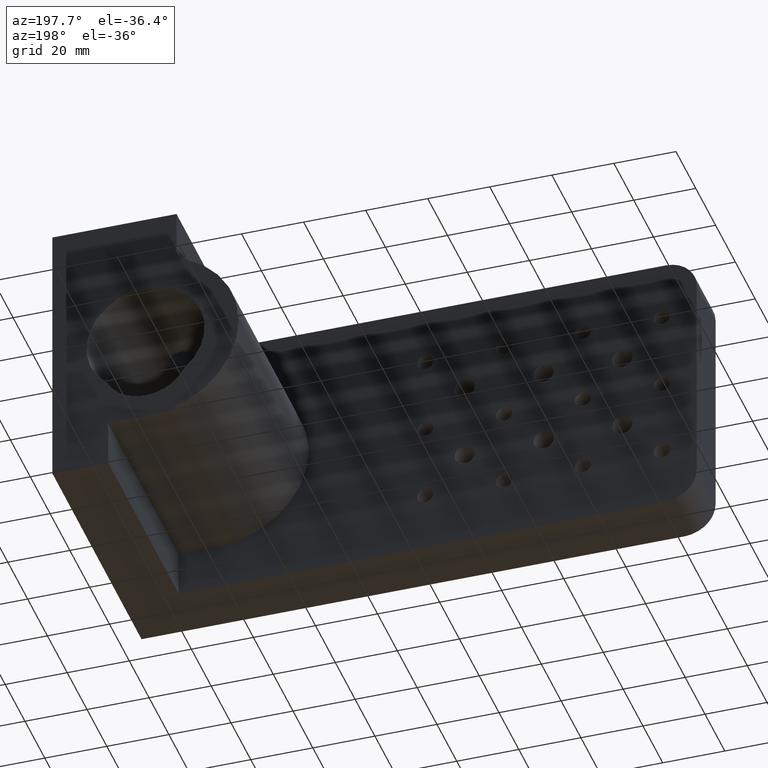
[diagram: clean part render]
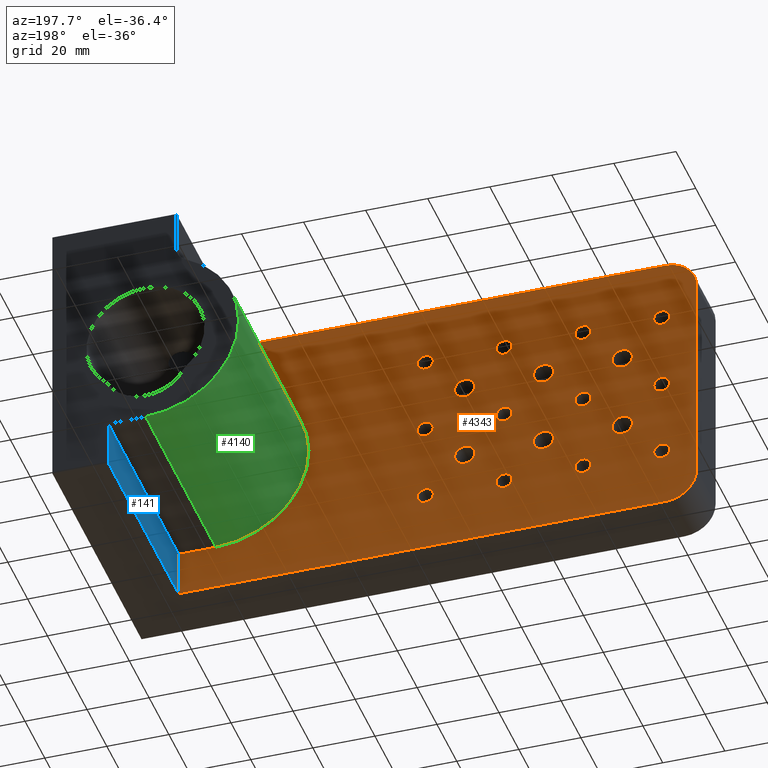
[diagram: same view with three faces highlighted in distinct colors, each labeled with its STEP entity id]
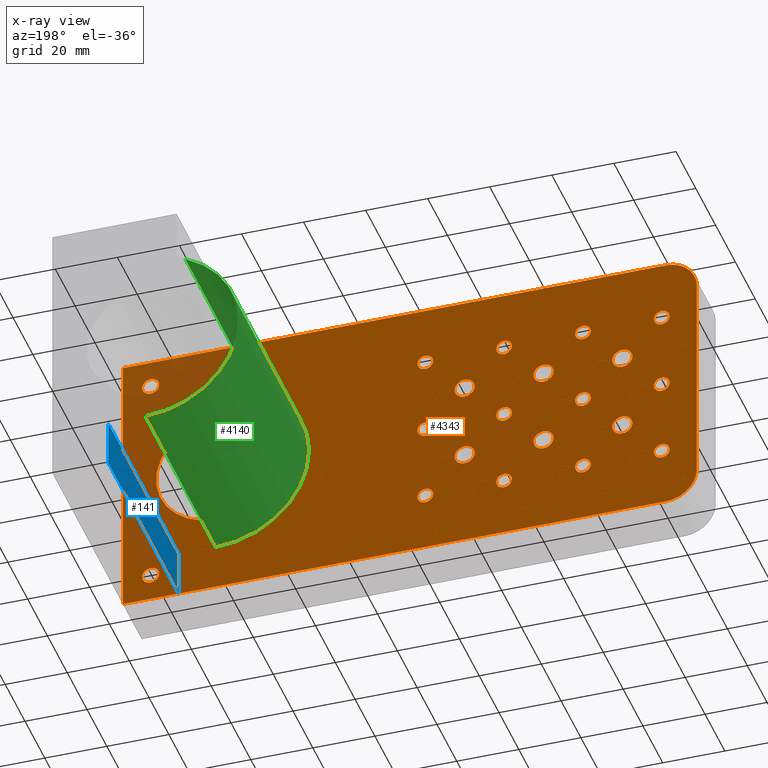
[diagram: x-ray of the same camera — body ghosted, the three highlighted faces saturated]
A machine part, auxiliary view with three faces highlighted in distinct colors.
The next image is the same camera in x-ray (body ghosted, the three faces saturated) — at least one of them is partly hidden behind the body in this view.
Their STEP definitions:

[orange] entity #4343 — the highlighted planar face has unit normal (0, 1, -0).
#2 = AXIS2_PLACEMENT_3D ( 'NONE', #5371, #759, #4094 ) ;
#8 = VERTEX_POINT ( 'NONE', #422 ) ;
#10 = CIRCLE ( 'NONE', #3460, 2.749999999999988500 ) ;
#13 = VERTEX_POINT ( 'NONE', #1196 ) ;
#28 = CIRCLE ( 'NONE', #1016, 2.552699999999990900 ) ;
#33 = ORIENTED_EDGE ( 'NONE', *, *, #3834, .F. ) ;
#35 = CARTESIAN_POINT ( 'NONE',  ( 119.8969387244427500, 104.2146020396520600, 146.5658939252802800 ) ) ;
#56 = DIRECTION ( 'NONE',  ( -0.0000000000000000000, -1.000000000000000000, -0.0000000000000000000 ) ) ;
#65 = DIRECTION ( 'NONE',  ( 0.0000000000000000000, 0.0000000000000000000, -1.000000000000000000 ) ) ;
#71 = EDGE_LOOP ( 'NONE', ( #4202, #4366 ) ) ;
#93 = CIRCLE ( 'NONE', #2, 3.249999999999975100 ) ;
#99 = DIRECTION ( 'NONE',  ( 1.000000000000000000, -0.0000000000000000000, 0.0000000000000000000 ) ) ;
#101 = CARTESIAN_POINT ( 'NONE',  ( 51.49693872444240100, 104.2146020396520600, 143.8158939252802800 ) ) ;
#109 = AXIS2_PLACEMENT_3D ( 'NONE', #4152, #4987, #1651 ) ;
#122 = CARTESIAN_POINT ( 'NONE',  ( 165.3969387244427500, 104.2146020396520600, 107.8158939252802800 ) ) ;
#155 = EDGE_CURVE ( 'NONE', #2225, #4063, #5157, .T. ) ;
#169 = CARTESIAN_POINT ( 'NONE',  ( 13.39693872444272500, 104.2146020396520600, 159.7658939252802400 ) ) ;
#171 = EDGE_CURVE ( 'NONE', #2649, #874, #3745, .T. ) ;
#186 = CARTESIAN_POINT ( 'NONE',  ( 64.19693872444273100, 104.2146020396520600, 156.5158939252802700 ) ) ;
#196 = EDGE_CURVE ( 'NONE', #4313, #5142, #2229, .T. ) ;
#202 = ORIENTED_EDGE ( 'NONE', *, *, #2654, .F. ) ;
#263 = CARTESIAN_POINT ( 'NONE',  ( 119.8969387244427500, 104.2146020396520600, 141.0658939252802800 ) ) ;
#265 = EDGE_LOOP ( 'NONE', ( #861, #3267 ) ) ;
#290 = DIRECTION ( 'NONE',  ( -0.0000000000000000000, 1.000000000000000000, -0.0000000000000000000 ) ) ;
#318 = EDGE_LOOP ( 'NONE', ( #4820, #435 ) ) ;
#338 = CIRCLE ( 'NONE', #3149, 2.552699999999990900 ) ;
#340 = VERTEX_POINT ( 'NONE', #1024 ) ;
#353 = DIRECTION ( 'NONE',  ( -0.0000000000000000000, -1.000000000000000000, -0.0000000000000000000 ) ) ;
#358 = CARTESIAN_POINT ( 'NONE',  ( 174.3969387244427500, 104.2146020396520600, 143.8158939252802800 ) ) ;
#379 = EDGE_CURVE ( 'NONE', #2860, #1930, #1063, .T. ) ;
#399 = CIRCLE ( 'NONE', #5300, 2.750000000000002700 ) ;
#403 = VERTEX_POINT ( 'NONE', #3115 ) ;
#416 = DIRECTION ( 'NONE',  ( -0.0000000000000000000, -1.000000000000000000, -0.0000000000000000000 ) ) ;
#422 = CARTESIAN_POINT ( 'NONE',  ( 26.09693872444204700, 104.2146020396520600, 146.3685939252802700 ) ) ;
#435 = ORIENTED_EDGE ( 'NONE', *, *, #2161, .T. ) ;
#446 = AXIS2_PLACEMENT_3D ( 'NONE', #2690, #618, #3568 ) ;
#487 = AXIS2_PLACEMENT_3D ( 'NONE', #2247, #620, #3542 ) ;
#492 = DIRECTION ( 'NONE',  ( -0.0000000000000000000, 1.000000000000000000, -0.0000000000000000000 ) ) ;
#500 = VERTEX_POINT ( 'NONE', #1147 ) ;
#504 = ORIENTED_EDGE ( 'NONE', *, *, #5385, .F. ) ;
#521 = DIRECTION ( 'NONE',  ( -0.0000000000000000000, 1.000000000000000000, -0.0000000000000000000 ) ) ;
#523 = CARTESIAN_POINT ( 'NONE',  ( 165.3969387244427500, 104.2146020396520600, 105.0658939252802900 ) ) ;
#527 = CIRCLE ( 'NONE', #1073, 10.00000000000000900 ) ;
#534 = ORIENTED_EDGE ( 'NONE', *, *, #5186, .T. ) ;
#545 = CARTESIAN_POINT ( 'NONE',  ( 13.39693872444272500, 104.2146020396520600, 131.1158939252802900 ) ) ;
#550 = EDGE_CURVE ( 'NONE', #3393, #2357, #527, .T. ) ;
#552 = AXIS2_PLACEMENT_3D ( 'NONE', #1749, #5060, #3883 ) ;
#562 = ORIENTED_EDGE ( 'NONE', *, *, #4392, .F. ) ;
#572 = DIRECTION ( 'NONE',  ( -0.0000000000000000000, -1.000000000000000000, -0.0000000000000000000 ) ) ;
#577 = EDGE_CURVE ( 'NONE', #3264, #5192, #3270, .T. ) ;
#599 = EDGE_LOOP ( 'NONE', ( #2009, #1820 ) ) ;
#612 = VERTEX_POINT ( 'NONE', #1133 ) ;
#616 = DIRECTION ( 'NONE',  ( -0.0000000000000000000, -1.000000000000000000, -0.0000000000000000000 ) ) ;
#618 = DIRECTION ( 'NONE',  ( 0.0000000000000000000, 1.000000000000000000, 0.0000000000000000000 ) ) ;
#620 = DIRECTION ( 'NONE',  ( -0.0000000000000000000, 1.000000000000000000, -0.0000000000000000000 ) ) ;
#629 = FACE_BOUND ( 'NONE', #640, .T. ) ;
#637 = DIRECTION ( 'NONE',  ( 0.0000000000000000000, 0.0000000000000000000, 1.000000000000000000 ) ) ;
#640 = EDGE_LOOP ( 'NONE', ( #1086, #3864 ) ) ;
#647 = CARTESIAN_POINT ( 'NONE',  ( 76.89693872444273400, 104.2146020396520600, 118.4158939252802600 ) ) ;
#670 = EDGE_CURVE ( 'NONE', #3048, #2805, #4754, .T. ) ;
#677 = CARTESIAN_POINT ( 'NONE',  ( -0.6030612755572317700, 104.2146020396520600, 178.8158939252802800 ) ) ;
#692 = CARTESIAN_POINT ( 'NONE',  ( -10.60306127555724100, 104.2146020396520600, 143.8158939252802800 ) ) ;
#703 = DIRECTION ( 'NONE',  ( 0.0000000000000000000, 0.0000000000000000000, 1.000000000000000000 ) ) ;
#706 = CARTESIAN_POINT ( 'NONE',  ( -0.6030612755572317700, 104.2146020396520600, 108.8158939252802600 ) ) ;
#728 = VERTEX_POINT ( 'NONE', #2835 ) ;
#731 = DIRECTION ( 'NONE',  ( 0.0000000000000000000, 0.0000000000000000000, 1.000000000000000000 ) ) ;
#752 = CARTESIAN_POINT ( 'NONE',  ( 26.09693872444204700, 104.2146020396520600, 171.7685939252802400 ) ) ;
#759 = DIRECTION ( 'NONE',  ( -0.0000000000000000000, -1.000000000000000000, -0.0000000000000000000 ) ) ;
#761 = FACE_BOUND ( 'NONE', #1761, .T. ) ;
#764 = DIRECTION ( 'NONE',  ( -0.0000000000000000000, -1.000000000000000000, -0.0000000000000000000 ) ) ;
#765 = AXIS2_PLACEMENT_3D ( 'NONE', #101, #492, #2097 ) ;
#771 = DIRECTION ( 'NONE',  ( 0.0000000000000000000, 0.0000000000000000000, 1.000000000000000000 ) ) ;
#783 = CIRCLE ( 'NONE', #3629, 2.552699999999990900 ) ;
#786 = VERTEX_POINT ( 'NONE', #2128 ) ;
#797 = CIRCLE ( 'NONE', #4729, 2.749999999999988500 ) ;
#809 = CIRCLE ( 'NONE', #4088, 2.552699999999990900 ) ;
#810 = DIRECTION ( 'NONE',  ( -0.0000000000000000000, -1.000000000000000000, -0.0000000000000000000 ) ) ;
#815 = DIRECTION ( 'NONE',  ( -0.0000000000000000000, -1.000000000000000000, -0.0000000000000000000 ) ) ;
#844 = AXIS2_PLACEMENT_3D ( 'NONE', #3305, #815, #3728 ) ;
#846 = ORIENTED_EDGE ( 'NONE', *, *, #1466, .T. ) ;
#859 = VERTEX_POINT ( 'NONE', #1402 ) ;
#861 = ORIENTED_EDGE ( 'NONE', *, *, #2761, .F. ) ;
#874 = VERTEX_POINT ( 'NONE', #4707 ) ;
#900 = DIRECTION ( 'NONE',  ( 0.0000000000000000000, 0.0000000000000000000, 1.000000000000000000 ) ) ;
#905 = CARTESIAN_POINT ( 'NONE',  ( 38.79693872444273200, 104.2146020396520600, 134.3658939252802600 ) ) ;
#926 = DIRECTION ( 'NONE',  ( 0.0000000000000000000, 0.0000000000000000000, -1.000000000000000000 ) ) ;
#929 = ORIENTED_EDGE ( 'NONE', *, *, #550, .T. ) ;
#935 = ORIENTED_EDGE ( 'NONE', *, *, #3276, .T. ) ;
#949 = DIRECTION ( 'NONE',  ( 0.0000000000000000000, 0.0000000000000000000, 1.000000000000000000 ) ) ;
#955 = EDGE_CURVE ( 'NONE', #2513, #4890, #1170, .T. ) ;
#962 = FACE_BOUND ( 'NONE', #3803, .T. ) ;
#975 = VERTEX_POINT ( 'NONE', #3445 ) ;
#977 = VERTEX_POINT ( 'NONE', #2603 ) ;
#999 = DIRECTION ( 'NONE',  ( -0.0000000000000000000, 1.000000000000000000, -0.0000000000000000000 ) ) ;
#1005 = DIRECTION ( 'NONE',  ( 0.0000000000000000000, 0.0000000000000000000, -1.000000000000000000 ) ) ;
#1012 = EDGE_CURVE ( 'NONE', #1251, #612, #3403, .T. ) ;
#1016 = AXIS2_PLACEMENT_3D ( 'NONE', #4798, #2259, #4823 ) ;
#1018 = EDGE_CURVE ( 'NONE', #4790, #403, #4567, .T. ) ;
#1024 = CARTESIAN_POINT ( 'NONE',  ( 38.79693872444273200, 104.2146020396520600, 127.8658939252803000 ) ) ;
#1060 = CIRCLE ( 'NONE', #1461, 2.552699999999990900 ) ;
#1063 = CIRCLE ( 'NONE', #2815, 2.552699999999990900 ) ;
#1073 = AXIS2_PLACEMENT_3D ( 'NONE', #706, #4886, #731 ) ;
#1079 = EDGE_CURVE ( 'NONE', #786, #8, #1688, .T. ) ;
#1085 = DIRECTION ( 'NONE',  ( 0.0000000000000000000, 0.0000000000000000000, -1.000000000000000000 ) ) ;
#1086 = ORIENTED_EDGE ( 'NONE', *, *, #196, .F. ) ;
#1105 = DIRECTION ( 'NONE',  ( -0.0000000000000000000, 1.000000000000000000, -0.0000000000000000000 ) ) ;
#1133 = CARTESIAN_POINT ( 'NONE',  ( 76.89693872444300400, 104.2146020396520600, 146.3685939252802700 ) ) ;
#1142 = DIRECTION ( 'NONE',  ( -0.0000000000000000000, 1.000000000000000000, -0.0000000000000000000 ) ) ;
#1147 = CARTESIAN_POINT ( 'NONE',  ( -0.6030612755571762600, 104.2146020396520600, 188.8158939252802500 ) ) ;
#1155 = DIRECTION ( 'NONE',  ( 0.0000000000000000000, 0.0000000000000000000, 1.000000000000000000 ) ) ;
#1160 = DIRECTION ( 'NONE',  ( 0.0000000000000000000, 0.0000000000000000000, 1.000000000000000000 ) ) ;
#1164 = VERTEX_POINT ( 'NONE', #263 ) ;
#1167 = EDGE_CURVE ( 'NONE', #4340, #500, #2716, .T. ) ;
#1170 = CIRCLE ( 'NONE', #552, 3.249999999999975100 ) ;
#1171 = VERTEX_POINT ( 'NONE', #3656 ) ;
#1179 = AXIS2_PLACEMENT_3D ( 'NONE', #2712, #3174, #1085 ) ;
#1184 = ORIENTED_EDGE ( 'NONE', *, *, #4731, .F. ) ;
#1196 = CARTESIAN_POINT ( 'NONE',  ( 38.79693872444273200, 104.2146020396520600, 159.7658939252802400 ) ) ;
#1209 = CARTESIAN_POINT ( 'NONE',  ( 64.19693872444274500, 104.2146020396520600, 134.3658939252802600 ) ) ;
#1216 = DIRECTION ( 'NONE',  ( 0.0000000000000000000, 0.0000000000000000000, 1.000000000000000000 ) ) ;
#1231 = VERTEX_POINT ( 'NONE', #1896 ) ;
#1251 = VERTEX_POINT ( 'NONE', #3475 ) ;
#1261 = AXIS2_PLACEMENT_3D ( 'NONE', #1290, #1679, #2965 ) ;
#1269 = EDGE_CURVE ( 'NONE', #500, #3817, #2007, .T. ) ;
#1289 = VERTEX_POINT ( 'NONE', #523 ) ;
#1290 = CARTESIAN_POINT ( 'NONE',  ( 76.89693872444300400, 104.2146020396520600, 143.8158939252802800 ) ) ;
#1300 = CARTESIAN_POINT ( 'NONE',  ( 144.3969387244427500, 104.2146020396520600, 143.8158939252802800 ) ) ;
#1311 = CIRCLE ( 'NONE', #4363, 2.552700000000005100 ) ;
#1351 = FACE_BOUND ( 'NONE', #71, .T. ) ;
#1357 = AXIS2_PLACEMENT_3D ( 'NONE', #2125, #3443, #900 ) ;
#1367 = EDGE_CURVE ( 'NONE', #4945, #3817, #4108, .T. ) ;
#1373 = EDGE_LOOP ( 'NONE', ( #5076, #2541 ) ) ;
#1397 = AXIS2_PLACEMENT_3D ( 'NONE', #2675, #3553, #3933 ) ;
#1399 = DIRECTION ( 'NONE',  ( 0.0000000000000000000, 1.000000000000000000, -0.0000000000000000000 ) ) ;
#1402 = CARTESIAN_POINT ( 'NONE',  ( 51.49693872444240100, 104.2146020396520600, 120.9685939252802700 ) ) ;
#1438 = VERTEX_POINT ( 'NONE', #905 ) ;
#1441 = DIRECTION ( 'NONE',  ( 0.0000000000000000000, 0.0000000000000000000, 1.000000000000000000 ) ) ;
#1447 = DIRECTION ( 'NONE',  ( -0.0000000000000000000, 1.000000000000000000, -0.0000000000000000000 ) ) ;
#1457 = ORIENTED_EDGE ( 'NONE', *, *, #577, .T. ) ;
#1460 = EDGE_CURVE ( 'NONE', #1930, #2860, #783, .T. ) ;
#1461 = AXIS2_PLACEMENT_3D ( 'NONE', #5238, #4982, #3513 ) ;
#1466 = EDGE_CURVE ( 'NONE', #5192, #3264, #2590, .T. ) ;
#1512 = ORIENTED_EDGE ( 'NONE', *, *, #1910, .F. ) ;
#1567 = EDGE_LOOP ( 'NONE', ( #3497, #2473 ) ) ;
#1578 = CARTESIAN_POINT ( 'NONE',  ( 26.09693872444204700, 104.2146020396520600, 115.8631939252802700 ) ) ;
#1600 = AXIS2_PLACEMENT_3D ( 'NONE', #4474, #1975, #2363 ) ;
#1603 = FACE_BOUND ( 'NONE', #1373, .T. ) ;
#1622 = VECTOR ( 'NONE', #4932, 1000.000000000000000 ) ;
#1623 = EDGE_LOOP ( 'NONE', ( #3249, #3382 ) ) ;
#1624 = ORIENTED_EDGE ( 'NONE', *, *, #1079, .F. ) ;
#1627 = VECTOR ( 'NONE', #703, 1000.000000000000000 ) ;
#1639 = ORIENTED_EDGE ( 'NONE', *, *, #1928, .F. ) ;
#1648 = CIRCLE ( 'NONE', #1866, 2.552700000000018800 ) ;
#1649 = DIRECTION ( 'NONE',  ( -0.0000000000000000000, 1.000000000000000000, -0.0000000000000000000 ) ) ;
#1651 = DIRECTION ( 'NONE',  ( 0.0000000000000000000, 0.0000000000000000000, -1.000000000000000000 ) ) ;
#1659 = CARTESIAN_POINT ( 'NONE',  ( 13.39693872444272500, 104.2146020396520600, 131.1158939252802900 ) ) ;
#1664 = AXIS2_PLACEMENT_3D ( 'NONE', #4786, #290, #5244 ) ;
#1679 = DIRECTION ( 'NONE',  ( -0.0000000000000000000, 1.000000000000000000, -0.0000000000000000000 ) ) ;
#1680 = CIRCLE ( 'NONE', #3287, 2.552699999999990900 ) ;
#1688 = CIRCLE ( 'NONE', #1929, 2.552699999999990900 ) ;
#1699 = CARTESIAN_POINT ( 'NONE',  ( 76.89693872444273400, 104.2146020396520600, 120.9685939252802700 ) ) ;
#1702 = EDGE_LOOP ( 'NONE', ( #1880, #3338 ) ) ;
#1720 = DIRECTION ( 'NONE',  ( 1.000000000000000000, -0.0000000000000000000, 0.0000000000000000000 ) ) ;
#1721 = DIRECTION ( 'NONE',  ( 0.0000000000000000000, 0.0000000000000000000, -1.000000000000000000 ) ) ;
#1723 = EDGE_CURVE ( 'NONE', #13, #2602, #1748, .T. ) ;
#1726 = FACE_BOUND ( 'NONE', #4113, .T. ) ;
#1737 = CARTESIAN_POINT ( 'NONE',  ( 174.3969387244427500, 104.2146020396520600, 188.8158939252802500 ) ) ;
#1748 = CIRCLE ( 'NONE', #2356, 3.249999999999975100 ) ;
#1749 = CARTESIAN_POINT ( 'NONE',  ( 13.39693872444272500, 104.2146020396520600, 156.5158939252802700 ) ) ;
#1750 = DIRECTION ( 'NONE',  ( -0.0000000000000000000, 1.000000000000000000, -0.0000000000000000000 ) ) ;
#1761 = EDGE_LOOP ( 'NONE', ( #846, #1457 ) ) ;
#1764 = ORIENTED_EDGE ( 'NONE', *, *, #1810, .F. ) ;
#1793 = FACE_OUTER_BOUND ( 'NONE', #5318, .T. ) ;
#1810 = EDGE_CURVE ( 'NONE', #612, #1251, #2547, .T. ) ;
#1820 = ORIENTED_EDGE ( 'NONE', *, *, #2911, .T. ) ;
#1841 = AXIS2_PLACEMENT_3D ( 'NONE', #186, #616, #4383 ) ;
#1842 = CIRCLE ( 'NONE', #3394, 2.552700000000005100 ) ;
#1866 = AXIS2_PLACEMENT_3D ( 'NONE', #1925, #3663, #3224 ) ;
#1877 = ORIENTED_EDGE ( 'NONE', *, *, #1367, .F. ) ;
#1880 = ORIENTED_EDGE ( 'NONE', *, *, #4531, .F. ) ;
#1896 = CARTESIAN_POINT ( 'NONE',  ( 13.39693872444272500, 104.2146020396520600, 134.3658939252802600 ) ) ;
#1900 = DIRECTION ( 'NONE',  ( -0.0000000000000000000, 1.000000000000000000, -0.0000000000000000000 ) ) ;
#1910 = EDGE_CURVE ( 'NONE', #874, #2649, #4000, .T. ) ;
#1925 = CARTESIAN_POINT ( 'NONE',  ( 51.49693872444240100, 104.2146020396520600, 169.2158939252802600 ) ) ;
#1928 = EDGE_CURVE ( 'NONE', #977, #5185, #1060, .T. ) ;
#1929 = AXIS2_PLACEMENT_3D ( 'NONE', #3951, #1447, #4356 ) ;
#1930 = VERTEX_POINT ( 'NONE', #3671 ) ;
#1931 = DIRECTION ( 'NONE',  ( 0.0000000000000000000, 0.0000000000000000000, 1.000000000000000000 ) ) ;
#1975 = DIRECTION ( 'NONE',  ( -0.0000000000000000000, -1.000000000000000000, -0.0000000000000000000 ) ) ;
#1996 = VERTEX_POINT ( 'NONE', #3428 ) ;
#2007 = LINE ( 'NONE', #1737, #2651 ) ;
#2009 = ORIENTED_EDGE ( 'NONE', *, *, #2962, .T. ) ;
#2012 = DIRECTION ( 'NONE',  ( -0.0000000000000000000, 1.000000000000000000, -0.0000000000000000000 ) ) ;
#2023 = CARTESIAN_POINT ( 'NONE',  ( 51.49693872444240100, 104.2146020396520600, 171.7685939252802700 ) ) ;
#2054 = FACE_BOUND ( 'NONE', #1623, .T. ) ;
#2097 = DIRECTION ( 'NONE',  ( 0.0000000000000000000, 0.0000000000000000000, 1.000000000000000000 ) ) ;
#2120 = FACE_BOUND ( 'NONE', #3903, .T. ) ;
#2124 = CARTESIAN_POINT ( 'NONE',  ( -0.6030612755571762600, 104.2146020396520600, 98.81589392528026400 ) ) ;
#2125 = CARTESIAN_POINT ( 'NONE',  ( 51.49693872444240100, 104.2146020396520600, 169.2158939252802600 ) ) ;
#2128 = CARTESIAN_POINT ( 'NONE',  ( 26.09693872444204700, 104.2146020396520600, 141.2631939252802900 ) ) ;
#2154 = CARTESIAN_POINT ( 'NONE',  ( 144.3969387244427500, 104.2146020396520600, 124.5658939252802600 ) ) ;
#2161 = EDGE_CURVE ( 'NONE', #4890, #2513, #4763, .T. ) ;
#2166 = DIRECTION ( 'NONE',  ( 0.0000000000000000000, 0.0000000000000000000, -1.000000000000000000 ) ) ;
#2185 = FACE_BOUND ( 'NONE', #3896, .T. ) ;
#2189 = DIRECTION ( 'NONE',  ( -0.0000000000000000000, -1.000000000000000000, -0.0000000000000000000 ) ) ;
#2225 = VERTEX_POINT ( 'NONE', #2367 ) ;
#2226 = EDGE_LOOP ( 'NONE', ( #5273, #4746 ) ) ;
#2229 = CIRCLE ( 'NONE', #765, 2.552700000000018800 ) ;
#2239 = ORIENTED_EDGE ( 'NONE', *, *, #3136, .T. ) ;
#2244 = ORIENTED_EDGE ( 'NONE', *, *, #3248, .F. ) ;
#2247 = CARTESIAN_POINT ( 'NONE',  ( 0.6969387244417368800, 104.2146020396520600, 143.8158939252802800 ) ) ;
#2259 = DIRECTION ( 'NONE',  ( -0.0000000000000000000, 1.000000000000000000, -0.0000000000000000000 ) ) ;
#2290 = DIRECTION ( 'NONE',  ( -0.0000000000000000000, 1.000000000000000000, -0.0000000000000000000 ) ) ;
#2309 = DIRECTION ( 'NONE',  ( 0.0000000000000000000, 0.0000000000000000000, 1.000000000000000000 ) ) ;
#2322 = AXIS2_PLACEMENT_3D ( 'NONE', #5120, #999, #1441 ) ;
#2340 = EDGE_LOOP ( 'NONE', ( #3117, #2667 ) ) ;
#2348 = CARTESIAN_POINT ( 'NONE',  ( 165.3969387244427500, 104.2146020396520600, 110.5658939252802600 ) ) ;
#2356 = AXIS2_PLACEMENT_3D ( 'NONE', #2480, #416, #4590 ) ;
#2357 = VERTEX_POINT ( 'NONE', #4575 ) ;
#2363 = DIRECTION ( 'NONE',  ( 0.0000000000000000000, 0.0000000000000000000, -1.000000000000000000 ) ) ;
#2367 = CARTESIAN_POINT ( 'NONE',  ( 51.49693872444240100, 104.2146020396520600, 166.6631939252802700 ) ) ;
#2386 = CARTESIAN_POINT ( 'NONE',  ( 0.6969387244417368800, 104.2146020396520600, 169.2158939252802600 ) ) ;
#2408 = VECTOR ( 'NONE', #1720, 1000.000000000000000 ) ;
#2446 = CARTESIAN_POINT ( 'NONE',  ( 165.3969387244427500, 104.2146020396520600, 107.8158939252802800 ) ) ;
#2463 = AXIS2_PLACEMENT_3D ( 'NONE', #3337, #2894, #1160 ) ;
#2472 = CIRCLE ( 'NONE', #2463, 2.552699999999990900 ) ;
#2473 = ORIENTED_EDGE ( 'NONE', *, *, #4148, .T. ) ;
#2480 = CARTESIAN_POINT ( 'NONE',  ( 38.79693872444273200, 104.2146020396520600, 156.5158939252802700 ) ) ;
#2496 = DIRECTION ( 'NONE',  ( 0.0000000000000000000, 0.0000000000000000000, 1.000000000000000000 ) ) ;
#2498 = AXIS2_PLACEMENT_3D ( 'NONE', #4680, #2189, #3885 ) ;
#2513 = VERTEX_POINT ( 'NONE', #3007 ) ;
#2539 = CIRCLE ( 'NONE', #844, 3.249999999999975100 ) ;
#2541 = ORIENTED_EDGE ( 'NONE', *, *, #3456, .F. ) ;
#2547 = CIRCLE ( 'NONE', #1261, 2.552699999999990900 ) ;
#2548 = DIRECTION ( 'NONE',  ( -0.0000000000000000000, -1.000000000000000000, -0.0000000000000000000 ) ) ;
#2576 = DIRECTION ( 'NONE',  ( 0.0000000000000000000, 0.0000000000000000000, 1.000000000000000000 ) ) ;
#2590 = CIRCLE ( 'NONE', #2963, 3.249999999999975100 ) ;
#2597 = CIRCLE ( 'NONE', #2765, 2.552699999999990900 ) ;
#2602 = VERTEX_POINT ( 'NONE', #3495 ) ;
#2603 = CARTESIAN_POINT ( 'NONE',  ( 0.6969387244417368800, 104.2146020396520600, 171.7685939252802400 ) ) ;
#2620 = CIRCLE ( 'NONE', #446, 19.24999999999998900 ) ;
#2649 = VERTEX_POINT ( 'NONE', #4672 ) ;
#2651 = VECTOR ( 'NONE', #99, 1000.000000000000000 ) ;
#2654 = EDGE_CURVE ( 'NONE', #2805, #3048, #1842, .T. ) ;
#2667 = ORIENTED_EDGE ( 'NONE', *, *, #3557, .F. ) ;
#2675 = CARTESIAN_POINT ( 'NONE',  ( 76.89693872444300400, 104.2146020396520600, 143.8158939252802800 ) ) ;
#2690 = CARTESIAN_POINT ( 'NONE',  ( 144.3969387244427500, 104.2146020396520600, 143.8158939252802800 ) ) ;
#2698 = FACE_BOUND ( 'NONE', #2226, .T. ) ;
#2704 = EDGE_CURVE ( 'NONE', #3458, #3797, #3879, .T. ) ;
#2710 = DIRECTION ( 'NONE',  ( -0.0000000000000000000, 1.000000000000000000, -0.0000000000000000000 ) ) ;
#2712 = CARTESIAN_POINT ( 'NONE',  ( 13.39693872444272500, 104.2146020396520600, 156.5158939252802700 ) ) ;
#2716 = CIRCLE ( 'NONE', #3905, 10.00000000000000900 ) ;
#2739 = CIRCLE ( 'NONE', #2498, 2.750000000000002700 ) ;
#2750 = CARTESIAN_POINT ( 'NONE',  ( 26.09693872444204700, 104.2146020396520600, 118.4158939252802600 ) ) ;
#2761 = EDGE_CURVE ( 'NONE', #4063, #2225, #1648, .T. ) ;
#2765 = AXIS2_PLACEMENT_3D ( 'NONE', #4835, #2290, #3134 ) ;
#2777 = VERTEX_POINT ( 'NONE', #2348 ) ;
#2793 = VERTEX_POINT ( 'NONE', #4900 ) ;
#2803 = EDGE_CURVE ( 'NONE', #1164, #3418, #3812, .T. ) ;
#2805 = VERTEX_POINT ( 'NONE', #3237 ) ;
#2810 = AXIS2_PLACEMENT_3D ( 'NONE', #1659, #4587, #3299 ) ;
#2815 = AXIS2_PLACEMENT_3D ( 'NONE', #2750, #1105, #637 ) ;
#2835 = CARTESIAN_POINT ( 'NONE',  ( 51.49693872444240100, 104.2146020396520600, 115.8631939252802600 ) ) ;
#2843 = DIRECTION ( 'NONE',  ( 0.0000000000000000000, 0.0000000000000000000, -1.000000000000000000 ) ) ;
#2860 = VERTEX_POINT ( 'NONE', #1578 ) ;
#2894 = DIRECTION ( 'NONE',  ( -0.0000000000000000000, 1.000000000000000000, -0.0000000000000000000 ) ) ;
#2911 = EDGE_CURVE ( 'NONE', #1438, #340, #4824, .T. ) ;
#2930 = CIRCLE ( 'NONE', #3633, 3.249999999999975100 ) ;
#2962 = EDGE_CURVE ( 'NONE', #340, #1438, #93, .T. ) ;
#2963 = AXIS2_PLACEMENT_3D ( 'NONE', #4196, #5006, #65 ) ;
#2965 = DIRECTION ( 'NONE',  ( 0.0000000000000000000, 0.0000000000000000000, 1.000000000000000000 ) ) ;
#3007 = CARTESIAN_POINT ( 'NONE',  ( 13.39693872444272500, 104.2146020396520600, 153.2658939252803000 ) ) ;
#3017 = VERTEX_POINT ( 'NONE', #2154 ) ;
#3035 = DIRECTION ( 'NONE',  ( -0.0000000000000000000, -1.000000000000000000, -0.0000000000000000000 ) ) ;
#3037 = FACE_BOUND ( 'NONE', #1567, .T. ) ;
#3048 = VERTEX_POINT ( 'NONE', #1699 ) ;
#3051 = CIRCLE ( 'NONE', #2810, 3.249999999999975100 ) ;
#3054 = ORIENTED_EDGE ( 'NONE', *, *, #4188, .F. ) ;
#3077 = CARTESIAN_POINT ( 'NONE',  ( 64.19693872444273100, 104.2146020396520600, 156.5158939252802700 ) ) ;
#3080 = AXIS2_PLACEMENT_3D ( 'NONE', #1300, #4225, #949 ) ;
#3110 = FACE_BOUND ( 'NONE', #3605, .T. ) ;
#3111 = CARTESIAN_POINT ( 'NONE',  ( 174.3969387244427500, 104.2146020396520600, 188.8158939252802500 ) ) ;
#3115 = CARTESIAN_POINT ( 'NONE',  ( 64.19693872444273100, 104.2146020396520600, 159.7658939252802400 ) ) ;
#3117 = ORIENTED_EDGE ( 'NONE', *, *, #2704, .F. ) ;
#3134 = DIRECTION ( 'NONE',  ( 0.0000000000000000000, 0.0000000000000000000, 1.000000000000000000 ) ) ;
#3136 = EDGE_CURVE ( 'NONE', #975, #2793, #2739, .T. ) ;
#3149 = AXIS2_PLACEMENT_3D ( 'NONE', #3395, #4201, #2496 ) ;
#3174 = DIRECTION ( 'NONE',  ( -0.0000000000000000000, -1.000000000000000000, -0.0000000000000000000 ) ) ;
#3224 = DIRECTION ( 'NONE',  ( 0.0000000000000000000, 0.0000000000000000000, 1.000000000000000000 ) ) ;
#3236 = CARTESIAN_POINT ( 'NONE',  ( 76.89693872444273400, 104.2146020396520600, 118.4158939252802600 ) ) ;
#3237 = CARTESIAN_POINT ( 'NONE',  ( 76.89693872444273400, 104.2146020396520600, 115.8631939252802600 ) ) ;
#3247 = DIRECTION ( 'NONE',  ( 0.0000000000000000000, 0.0000000000000000000, -1.000000000000000000 ) ) ;
#3248 = EDGE_CURVE ( 'NONE', #5185, #977, #809, .T. ) ;
#3249 = ORIENTED_EDGE ( 'NONE', *, *, #5213, .T. ) ;
#3264 = VERTEX_POINT ( 'NONE', #1209 ) ;
#3267 = ORIENTED_EDGE ( 'NONE', *, *, #155, .F. ) ;
#3270 = CIRCLE ( 'NONE', #4769, 3.249999999999975100 ) ;
#3274 = CARTESIAN_POINT ( 'NONE',  ( 0.6969387244417372100, 104.2146020396520600, 115.8631939252802700 ) ) ;
#3276 = EDGE_CURVE ( 'NONE', #1289, #2777, #797, .T. ) ;
#3287 = AXIS2_PLACEMENT_3D ( 'NONE', #3312, #1649, #1216 ) ;
#3299 = DIRECTION ( 'NONE',  ( 0.0000000000000000000, 0.0000000000000000000, -1.000000000000000000 ) ) ;
#3305 = CARTESIAN_POINT ( 'NONE',  ( 38.79693872444273200, 104.2146020396520600, 156.5158939252802700 ) ) ;
#3312 = CARTESIAN_POINT ( 'NONE',  ( 26.09693872444204700, 104.2146020396520600, 143.8158939252802800 ) ) ;
#3337 = CARTESIAN_POINT ( 'NONE',  ( 26.09693872444204700, 104.2146020396520600, 169.2158939252802600 ) ) ;
#3338 = ORIENTED_EDGE ( 'NONE', *, *, #5003, .F. ) ;
#3369 = AXIS2_PLACEMENT_3D ( 'NONE', #3895, #1399, #3526 ) ;
#3373 = CARTESIAN_POINT ( 'NONE',  ( 119.8969387244427500, 104.2146020396520600, 143.8158939252802800 ) ) ;
#3382 = ORIENTED_EDGE ( 'NONE', *, *, #5327, .T. ) ;
#3393 = VERTEX_POINT ( 'NONE', #2124 ) ;
#3394 = AXIS2_PLACEMENT_3D ( 'NONE', #647, #2710, #2309 ) ;
#3395 = CARTESIAN_POINT ( 'NONE',  ( 0.6969387244417368800, 104.2146020396520600, 143.8158939252802800 ) ) ;
#3402 = DIRECTION ( 'NONE',  ( -0.0000000000000000000, 1.000000000000000000, -0.0000000000000000000 ) ) ;
#3403 = CIRCLE ( 'NONE', #1397, 2.552699999999990900 ) ;
#3407 = LINE ( 'NONE', #692, #1627 ) ;
#3418 = VERTEX_POINT ( 'NONE', #35 ) ;
#3421 = DIRECTION ( 'NONE',  ( 0.0000000000000000000, 0.0000000000000000000, 1.000000000000000000 ) ) ;
#3428 = CARTESIAN_POINT ( 'NONE',  ( 0.6969387244417368800, 104.2146020396520600, 120.9685939252802600 ) ) ;
#3443 = DIRECTION ( 'NONE',  ( -0.0000000000000000000, 1.000000000000000000, -0.0000000000000000000 ) ) ;
#3444 = FACE_BOUND ( 'NONE', #599, .T. ) ;
#3445 = CARTESIAN_POINT ( 'NONE',  ( 165.3969387244427500, 104.2146020396520600, 182.5658939252802500 ) ) ;
#3456 = EDGE_CURVE ( 'NONE', #3699, #4641, #2472, .T. ) ;
#3458 = VERTEX_POINT ( 'NONE', #3707 ) ;
#3460 = AXIS2_PLACEMENT_3D ( 'NONE', #122, #56, #1721 ) ;
#3470 = CARTESIAN_POINT ( 'NONE',  ( 26.09693872444204700, 104.2146020396520600, 166.6631939252802700 ) ) ;
#3475 = CARTESIAN_POINT ( 'NONE',  ( 76.89693872444300400, 104.2146020396520600, 141.2631939252802900 ) ) ;
#3495 = CARTESIAN_POINT ( 'NONE',  ( 38.79693872444273200, 104.2146020396520600, 153.2658939252803000 ) ) ;
#3497 = ORIENTED_EDGE ( 'NONE', *, *, #2803, .T. ) ;
#3498 = EDGE_CURVE ( 'NONE', #2793, #975, #399, .T. ) ;
#3500 = CARTESIAN_POINT ( 'NONE',  ( 64.19693872444273100, 104.2146020396520600, 153.2658939252803000 ) ) ;
#3503 = AXIS2_PLACEMENT_3D ( 'NONE', #4271, #521, #3421 ) ;
#3513 = DIRECTION ( 'NONE',  ( 0.0000000000000000000, 0.0000000000000000000, 1.000000000000000000 ) ) ;
#3526 = DIRECTION ( 'NONE',  ( 0.0000000000000000000, 0.0000000000000000000, 1.000000000000000000 ) ) ;
#3541 = CIRCLE ( 'NONE', #4091, 2.552699999999990900 ) ;
#3542 = DIRECTION ( 'NONE',  ( 0.0000000000000000000, 0.0000000000000000000, 1.000000000000000000 ) ) ;
#3544 = LINE ( 'NONE', #4639, #2408 ) ;
#3553 = DIRECTION ( 'NONE',  ( -0.0000000000000000000, 1.000000000000000000, -0.0000000000000000000 ) ) ;
#3557 = EDGE_CURVE ( 'NONE', #3797, #3458, #338, .T. ) ;
#3568 = DIRECTION ( 'NONE',  ( 0.0000000000000000000, 0.0000000000000000000, 1.000000000000000000 ) ) ;
#3580 = EDGE_CURVE ( 'NONE', #3393, #4945, #3544, .T. ) ;
#3605 = EDGE_LOOP ( 'NONE', ( #33, #3054 ) ) ;
#3613 = DIRECTION ( 'NONE',  ( 0.0000000000000000000, 0.0000000000000000000, 1.000000000000000000 ) ) ;
#3629 = AXIS2_PLACEMENT_3D ( 'NONE', #3840, #1750, #3768 ) ;
#3633 = AXIS2_PLACEMENT_3D ( 'NONE', #545, #3035, #2166 ) ;
#3635 = CARTESIAN_POINT ( 'NONE',  ( 0.6969387244417368800, 104.2146020396520600, 118.4158939252802600 ) ) ;
#3656 = CARTESIAN_POINT ( 'NONE',  ( 144.3969387244427500, 104.2146020396520600, 163.0658939252802500 ) ) ;
#3663 = DIRECTION ( 'NONE',  ( -0.0000000000000000000, 1.000000000000000000, -0.0000000000000000000 ) ) ;
#3671 = CARTESIAN_POINT ( 'NONE',  ( 26.09693872444204700, 104.2146020396520600, 120.9685939252802600 ) ) ;
#3683 = DIRECTION ( 'NONE',  ( -0.0000000000000000000, 1.000000000000000000, -0.0000000000000000000 ) ) ;
#3699 = VERTEX_POINT ( 'NONE', #3470 ) ;
#3707 = CARTESIAN_POINT ( 'NONE',  ( 0.6969387244417368800, 104.2146020396520600, 146.3685939252802700 ) ) ;
#3728 = DIRECTION ( 'NONE',  ( 0.0000000000000000000, 0.0000000000000000000, -1.000000000000000000 ) ) ;
#3739 = EDGE_CURVE ( 'NONE', #403, #4790, #4061, .T. ) ;
#3742 = ORIENTED_EDGE ( 'NONE', *, *, #171, .F. ) ;
#3745 = CIRCLE ( 'NONE', #3881, 2.552699999999990900 ) ;
#3766 = CIRCLE ( 'NONE', #4840, 2.750000000000002700 ) ;
#3768 = DIRECTION ( 'NONE',  ( 0.0000000000000000000, 0.0000000000000000000, 1.000000000000000000 ) ) ;
#3797 = VERTEX_POINT ( 'NONE', #3898 ) ;
#3803 = EDGE_LOOP ( 'NONE', ( #935, #534 ) ) ;
#3812 = CIRCLE ( 'NONE', #1600, 2.750000000000002700 ) ;
#3817 = VERTEX_POINT ( 'NONE', #3111 ) ;
#3829 = FACE_BOUND ( 'NONE', #4805, .T. ) ;
#3834 = EDGE_CURVE ( 'NONE', #3017, #1171, #2620, .T. ) ;
#3840 = CARTESIAN_POINT ( 'NONE',  ( 26.09693872444204700, 104.2146020396520600, 118.4158939252802600 ) ) ;
#3864 = ORIENTED_EDGE ( 'NONE', *, *, #5001, .F. ) ;
#3879 = CIRCLE ( 'NONE', #487, 2.552699999999990900 ) ;
#3881 = AXIS2_PLACEMENT_3D ( 'NONE', #5073, #3402, #2576 ) ;
#3883 = DIRECTION ( 'NONE',  ( 0.0000000000000000000, 0.0000000000000000000, -1.000000000000000000 ) ) ;
#3885 = DIRECTION ( 'NONE',  ( 0.0000000000000000000, 0.0000000000000000000, -1.000000000000000000 ) ) ;
#3887 = AXIS2_PLACEMENT_3D ( 'NONE', #3077, #572, #1005 ) ;
#3891 = EDGE_CURVE ( 'NONE', #4641, #3699, #28, .T. ) ;
#3895 = CARTESIAN_POINT ( 'NONE',  ( 174.3969387244427500, 104.2146020396520600, 143.8158939252802800 ) ) ;
#3896 = EDGE_LOOP ( 'NONE', ( #1764, #4035 ) ) ;
#3898 = CARTESIAN_POINT ( 'NONE',  ( 0.6969387244417372100, 104.2146020396520600, 141.2631939252802900 ) ) ;
#3903 = EDGE_LOOP ( 'NONE', ( #1639, #2244 ) ) ;
#3905 = AXIS2_PLACEMENT_3D ( 'NONE', #677, #4826, #3613 ) ;
#3906 = CARTESIAN_POINT ( 'NONE',  ( -10.60306127555724100, 104.2146020396520600, 178.8158939252801900 ) ) ;
#3933 = DIRECTION ( 'NONE',  ( 0.0000000000000000000, 0.0000000000000000000, 1.000000000000000000 ) ) ;
#3951 = CARTESIAN_POINT ( 'NONE',  ( 26.09693872444204700, 104.2146020396520600, 143.8158939252802800 ) ) ;
#3956 = FACE_BOUND ( 'NONE', #2340, .T. ) ;
#3971 = CARTESIAN_POINT ( 'NONE',  ( 174.3969387244427500, 104.2146020396520600, 98.81589392528026400 ) ) ;
#3991 = ORIENTED_EDGE ( 'NONE', *, *, #4661, .T. ) ;
#4000 = CIRCLE ( 'NONE', #3503, 2.552699999999990900 ) ;
#4022 = CARTESIAN_POINT ( 'NONE',  ( 13.39693872444272500, 104.2146020396520600, 127.8658939252803000 ) ) ;
#4035 = ORIENTED_EDGE ( 'NONE', *, *, #1012, .F. ) ;
#4061 = CIRCLE ( 'NONE', #3887, 3.249999999999975100 ) ;
#4063 = VERTEX_POINT ( 'NONE', #2023 ) ;
#4088 = AXIS2_PLACEMENT_3D ( 'NONE', #2386, #3683, #4133 ) ;
#4091 = AXIS2_PLACEMENT_3D ( 'NONE', #3635, #2012, #771 ) ;
#4094 = DIRECTION ( 'NONE',  ( 0.0000000000000000000, 0.0000000000000000000, -1.000000000000000000 ) ) ;
#4108 = LINE ( 'NONE', #358, #1622 ) ;
#4113 = EDGE_LOOP ( 'NONE', ( #3991, #4557 ) ) ;
#4123 = VERTEX_POINT ( 'NONE', #3274 ) ;
#4133 = DIRECTION ( 'NONE',  ( 0.0000000000000000000, 0.0000000000000000000, 1.000000000000000000 ) ) ;
#4148 = EDGE_CURVE ( 'NONE', #3418, #1164, #3766, .T. ) ;
#4152 = CARTESIAN_POINT ( 'NONE',  ( 38.79693872444273200, 104.2146020396520600, 131.1158939252802900 ) ) ;
#4167 = ORIENTED_EDGE ( 'NONE', *, *, #3580, .F. ) ;
#4176 = EDGE_LOOP ( 'NONE', ( #504, #1624 ) ) ;
#4188 = EDGE_CURVE ( 'NONE', #1171, #3017, #5374, .T. ) ;
#4196 = CARTESIAN_POINT ( 'NONE',  ( 64.19693872444274500, 104.2146020396520600, 131.1158939252802900 ) ) ;
#4201 = DIRECTION ( 'NONE',  ( -0.0000000000000000000, 1.000000000000000000, -0.0000000000000000000 ) ) ;
#4202 = ORIENTED_EDGE ( 'NONE', *, *, #1018, .T. ) ;
#4204 = CARTESIAN_POINT ( 'NONE',  ( 51.49693872444240100, 104.2146020396520600, 141.2631939252802900 ) ) ;
#4225 = DIRECTION ( 'NONE',  ( 0.0000000000000000000, 1.000000000000000000, 0.0000000000000000000 ) ) ;
#4226 = FACE_BOUND ( 'NONE', #4856, .T. ) ;
#4232 = CARTESIAN_POINT ( 'NONE',  ( 64.19693872444274500, 104.2146020396520600, 127.8658939252803000 ) ) ;
#4271 = CARTESIAN_POINT ( 'NONE',  ( 76.89693872444274800, 104.2146020396520600, 169.2158939252802600 ) ) ;
#4283 = FACE_BOUND ( 'NONE', #318, .T. ) ;
#4313 = VERTEX_POINT ( 'NONE', #4333 ) ;
#4333 = CARTESIAN_POINT ( 'NONE',  ( 51.49693872444240100, 104.2146020396520600, 146.3685939252802900 ) ) ;
#4340 = VERTEX_POINT ( 'NONE', #3906 ) ;
#4343 = ADVANCED_FACE ( 'NONE', ( #1726, #4283, #1351, #761, #2054, #3444, #4344, #3037, #962, #2120, #1603, #5235, #4226, #3956, #5052, #629, #2185, #5310, #2698, #4781, #3829, #1793, #3110 ), #5182, .T. ) ;
#4344 = FACE_BOUND ( 'NONE', #4867, .T. ) ;
#4356 = DIRECTION ( 'NONE',  ( 0.0000000000000000000, 0.0000000000000000000, 1.000000000000000000 ) ) ;
#4363 = AXIS2_PLACEMENT_3D ( 'NONE', #5243, #1900, #1931 ) ;
#4366 = ORIENTED_EDGE ( 'NONE', *, *, #3739, .T. ) ;
#4370 = ORIENTED_EDGE ( 'NONE', *, *, #1269, .T. ) ;
#4383 = DIRECTION ( 'NONE',  ( 0.0000000000000000000, 0.0000000000000000000, -1.000000000000000000 ) ) ;
#4392 = EDGE_CURVE ( 'NONE', #728, #859, #4665, .T. ) ;
#4456 = VERTEX_POINT ( 'NONE', #4022 ) ;
#4474 = CARTESIAN_POINT ( 'NONE',  ( 119.8969387244427500, 104.2146020396520600, 143.8158939252802800 ) ) ;
#4481 = ORIENTED_EDGE ( 'NONE', *, *, #1167, .T. ) ;
#4531 = EDGE_CURVE ( 'NONE', #1996, #4123, #3541, .T. ) ;
#4545 = CARTESIAN_POINT ( 'NONE',  ( 165.3969387244427500, 104.2146020396520600, 179.8158939252802500 ) ) ;
#4557 = ORIENTED_EDGE ( 'NONE', *, *, #1723, .T. ) ;
#4567 = CIRCLE ( 'NONE', #1841, 3.249999999999975100 ) ;
#4572 = EDGE_LOOP ( 'NONE', ( #1184, #562 ) ) ;
#4575 = CARTESIAN_POINT ( 'NONE',  ( -10.60306127555724100, 104.2146020396520600, 108.8158939252803500 ) ) ;
#4587 = DIRECTION ( 'NONE',  ( -0.0000000000000000000, -1.000000000000000000, -0.0000000000000000000 ) ) ;
#4590 = DIRECTION ( 'NONE',  ( 0.0000000000000000000, 0.0000000000000000000, -1.000000000000000000 ) ) ;
#4621 = ORIENTED_EDGE ( 'NONE', *, *, #3498, .T. ) ;
#4639 = CARTESIAN_POINT ( 'NONE',  ( 174.3969387244427500, 104.2146020396520600, 98.81589392528026400 ) ) ;
#4641 = VERTEX_POINT ( 'NONE', #752 ) ;
#4644 = CARTESIAN_POINT ( 'NONE',  ( 0.6969387244417372100, 104.2146020396520600, 166.6631939252802700 ) ) ;
#4661 = EDGE_CURVE ( 'NONE', #2602, #13, #2539, .T. ) ;
#4665 = CIRCLE ( 'NONE', #2322, 2.552700000000005100 ) ;
#4672 = CARTESIAN_POINT ( 'NONE',  ( 76.89693872444274800, 104.2146020396520600, 171.7685939252802400 ) ) ;
#4680 = CARTESIAN_POINT ( 'NONE',  ( 165.3969387244427500, 104.2146020396520600, 179.8158939252802500 ) ) ;
#4703 = AXIS2_PLACEMENT_3D ( 'NONE', #3236, #1142, #1155 ) ;
#4707 = CARTESIAN_POINT ( 'NONE',  ( 76.89693872444274800, 104.2146020396520600, 166.6631939252802700 ) ) ;
#4729 = AXIS2_PLACEMENT_3D ( 'NONE', #2446, #353, #3247 ) ;
#4731 = EDGE_CURVE ( 'NONE', #859, #728, #1311, .T. ) ;
#4746 = ORIENTED_EDGE ( 'NONE', *, *, #379, .F. ) ;
#4754 = CIRCLE ( 'NONE', #4703, 2.552700000000005100 ) ;
#4763 = CIRCLE ( 'NONE', #1179, 3.249999999999975100 ) ;
#4769 = AXIS2_PLACEMENT_3D ( 'NONE', #4845, #764, #5294 ) ;
#4781 = FACE_BOUND ( 'NONE', #4572, .T. ) ;
#4786 = CARTESIAN_POINT ( 'NONE',  ( 51.49693872444240100, 104.2146020396520600, 143.8158939252802800 ) ) ;
#4790 = VERTEX_POINT ( 'NONE', #3500 ) ;
#4798 = CARTESIAN_POINT ( 'NONE',  ( 26.09693872444204700, 104.2146020396520600, 169.2158939252802600 ) ) ;
#4805 = EDGE_LOOP ( 'NONE', ( #4942, #202 ) ) ;
#4820 = ORIENTED_EDGE ( 'NONE', *, *, #955, .T. ) ;
#4823 = DIRECTION ( 'NONE',  ( 0.0000000000000000000, 0.0000000000000000000, 1.000000000000000000 ) ) ;
#4824 = CIRCLE ( 'NONE', #109, 3.249999999999975100 ) ;
#4826 = DIRECTION ( 'NONE',  ( 0.0000000000000000000, 1.000000000000000000, -0.0000000000000000000 ) ) ;
#4835 = CARTESIAN_POINT ( 'NONE',  ( 0.6969387244417368800, 104.2146020396520600, 118.4158939252802600 ) ) ;
#4840 = AXIS2_PLACEMENT_3D ( 'NONE', #3373, #2548, #926 ) ;
#4845 = CARTESIAN_POINT ( 'NONE',  ( 64.19693872444274500, 104.2146020396520600, 131.1158939252802900 ) ) ;
#4856 = EDGE_LOOP ( 'NONE', ( #3742, #1512 ) ) ;
#4867 = EDGE_LOOP ( 'NONE', ( #4621, #2239 ) ) ;
#4886 = DIRECTION ( 'NONE',  ( 0.0000000000000000000, 1.000000000000000000, -0.0000000000000000000 ) ) ;
#4890 = VERTEX_POINT ( 'NONE', #169 ) ;
#4900 = CARTESIAN_POINT ( 'NONE',  ( 165.3969387244427500, 104.2146020396520600, 177.0658939252802500 ) ) ;
#4911 = EDGE_CURVE ( 'NONE', #2357, #4340, #3407, .T. ) ;
#4932 = DIRECTION ( 'NONE',  ( 1.224606353822377500E-016, 0.0000000000000000000, 1.000000000000000000 ) ) ;
#4942 = ORIENTED_EDGE ( 'NONE', *, *, #670, .F. ) ;
#4945 = VERTEX_POINT ( 'NONE', #3971 ) ;
#4982 = DIRECTION ( 'NONE',  ( -0.0000000000000000000, 1.000000000000000000, -0.0000000000000000000 ) ) ;
#4987 = DIRECTION ( 'NONE',  ( -0.0000000000000000000, -1.000000000000000000, -0.0000000000000000000 ) ) ;
#4996 = ORIENTED_EDGE ( 'NONE', *, *, #4911, .T. ) ;
#5001 = EDGE_CURVE ( 'NONE', #5142, #4313, #5267, .T. ) ;
#5003 = EDGE_CURVE ( 'NONE', #4123, #1996, #2597, .T. ) ;
#5006 = DIRECTION ( 'NONE',  ( -0.0000000000000000000, -1.000000000000000000, -0.0000000000000000000 ) ) ;
#5052 = FACE_BOUND ( 'NONE', #4176, .T. ) ;
#5060 = DIRECTION ( 'NONE',  ( -0.0000000000000000000, -1.000000000000000000, -0.0000000000000000000 ) ) ;
#5073 = CARTESIAN_POINT ( 'NONE',  ( 76.89693872444274800, 104.2146020396520600, 169.2158939252802600 ) ) ;
#5076 = ORIENTED_EDGE ( 'NONE', *, *, #3891, .F. ) ;
#5120 = CARTESIAN_POINT ( 'NONE',  ( 51.49693872444240100, 104.2146020396520600, 118.4158939252802600 ) ) ;
#5142 = VERTEX_POINT ( 'NONE', #4204 ) ;
#5157 = CIRCLE ( 'NONE', #1357, 2.552700000000018800 ) ;
#5182 = PLANE ( 'NONE',  #3369 ) ;
#5185 = VERTEX_POINT ( 'NONE', #4644 ) ;
#5186 = EDGE_CURVE ( 'NONE', #2777, #1289, #10, .T. ) ;
#5192 = VERTEX_POINT ( 'NONE', #4232 ) ;
#5213 = EDGE_CURVE ( 'NONE', #4456, #1231, #2930, .T. ) ;
#5235 = FACE_BOUND ( 'NONE', #265, .T. ) ;
#5238 = CARTESIAN_POINT ( 'NONE',  ( 0.6969387244417368800, 104.2146020396520600, 169.2158939252802600 ) ) ;
#5243 = CARTESIAN_POINT ( 'NONE',  ( 51.49693872444240100, 104.2146020396520600, 118.4158939252802600 ) ) ;
#5244 = DIRECTION ( 'NONE',  ( 0.0000000000000000000, 0.0000000000000000000, 1.000000000000000000 ) ) ;
#5267 = CIRCLE ( 'NONE', #1664, 2.552700000000018800 ) ;
#5273 = ORIENTED_EDGE ( 'NONE', *, *, #1460, .F. ) ;
#5294 = DIRECTION ( 'NONE',  ( 0.0000000000000000000, 0.0000000000000000000, -1.000000000000000000 ) ) ;
#5300 = AXIS2_PLACEMENT_3D ( 'NONE', #4545, #810, #2843 ) ;
#5310 = FACE_BOUND ( 'NONE', #1702, .T. ) ;
#5318 = EDGE_LOOP ( 'NONE', ( #1877, #4167, #929, #4996, #4481, #4370 ) ) ;
#5327 = EDGE_CURVE ( 'NONE', #1231, #4456, #3051, .T. ) ;
#5371 = CARTESIAN_POINT ( 'NONE',  ( 38.79693872444273200, 104.2146020396520600, 131.1158939252802900 ) ) ;
#5374 = CIRCLE ( 'NONE', #3080, 19.24999999999998900 ) ;
#5385 = EDGE_CURVE ( 'NONE', #8, #786, #1680, .T. ) ;

[blue] entity #141 — the highlighted planar face has unit normal (1, 0, -0).
#141 = ADVANCED_FACE ( 'NONE', ( #411 ), #4211, .F. ) ;
#411 = FACE_OUTER_BOUND ( 'NONE', #2218, .T. ) ;
#468 = LINE ( 'NONE', #737, #3672 ) ;
#470 = VECTOR ( 'NONE', #3758, 1000.000000000000000 ) ;
#586 = LINE ( 'NONE', #4464, #3332 ) ;
#666 = VERTEX_POINT ( 'NONE', #2373 ) ;
#737 = CARTESIAN_POINT ( 'NONE',  ( 156.3969387244482300, 175.2146020396520500, 113.8158939252802600 ) ) ;
#827 = ORIENTED_EDGE ( 'NONE', *, *, #4926, .T. ) ;
#1574 = LINE ( 'NONE', #2531, #470 ) ;
#1588 = DIRECTION ( 'NONE',  ( -0.0000000000000000000, -1.000000000000000000, -0.0000000000000000000 ) ) ;
#1606 = CARTESIAN_POINT ( 'NONE',  ( 156.3969387244482300, 175.2146020396520500, 98.81589392528026400 ) ) ;
#1713 = DIRECTION ( 'NONE',  ( 1.000000000000000000, 0.0000000000000000000, -1.156482317317871500E-016 ) ) ;
#1731 = CARTESIAN_POINT ( 'NONE',  ( 156.3969387244482300, 104.2146020396520600, 113.8158939252802600 ) ) ;
#1878 = ORIENTED_EDGE ( 'NONE', *, *, #3566, .T. ) ;
#2074 = ORIENTED_EDGE ( 'NONE', *, *, #5357, .F. ) ;
#2218 = EDGE_LOOP ( 'NONE', ( #1878, #3653, #2074, #827 ) ) ;
#2373 = CARTESIAN_POINT ( 'NONE',  ( 156.3969387244482300, 104.2146020396520600, 98.81589392528026400 ) ) ;
#2531 = CARTESIAN_POINT ( 'NONE',  ( 156.3969387244482300, 104.2146020396520600, 98.81589392528026400 ) ) ;
#2711 = VERTEX_POINT ( 'NONE', #3939 ) ;
#2728 = VERTEX_POINT ( 'NONE', #4364 ) ;
#2990 = VERTEX_POINT ( 'NONE', #1731 ) ;
#3332 = VECTOR ( 'NONE', #4417, 1000.000000000000000 ) ;
#3566 = EDGE_CURVE ( 'NONE', #666, #2990, #1574, .T. ) ;
#3653 = ORIENTED_EDGE ( 'NONE', *, *, #4597, .F. ) ;
#3672 = VECTOR ( 'NONE', #1588, 1000.000000000000000 ) ;
#3758 = DIRECTION ( 'NONE',  ( 1.156482317317871500E-016, 0.0000000000000000000, 1.000000000000000000 ) ) ;
#3909 = LINE ( 'NONE', #1606, #4799 ) ;
#3939 = CARTESIAN_POINT ( 'NONE',  ( 156.3969387244482300, 175.2146020396520500, 113.8158939252802600 ) ) ;
#4211 = PLANE ( 'NONE',  #5080 ) ;
#4364 = CARTESIAN_POINT ( 'NONE',  ( 156.3969387244482300, 175.2146020396520500, 98.81589392528026400 ) ) ;
#4417 = DIRECTION ( 'NONE',  ( -0.0000000000000000000, -1.000000000000000000, -0.0000000000000000000 ) ) ;
#4464 = CARTESIAN_POINT ( 'NONE',  ( 156.3969387244482300, 175.2146020396520500, 98.81589392528026400 ) ) ;
#4597 = EDGE_CURVE ( 'NONE', #2711, #2990, #468, .T. ) ;
#4799 = VECTOR ( 'NONE', #5369, 1000.000000000000000 ) ;
#4926 = EDGE_CURVE ( 'NONE', #2728, #666, #586, .T. ) ;
#5026 = DIRECTION ( 'NONE',  ( -1.156482317317871500E-016, 0.0000000000000000000, -1.000000000000000000 ) ) ;
#5055 = CARTESIAN_POINT ( 'NONE',  ( 156.3969387244482300, 175.2146020396520500, 98.81589392528026400 ) ) ;
#5080 = AXIS2_PLACEMENT_3D ( 'NONE', #5055, #1713, #5026 ) ;
#5357 = EDGE_CURVE ( 'NONE', #2728, #2711, #3909, .T. ) ;
#5369 = DIRECTION ( 'NONE',  ( 1.156482317317871500E-016, 0.0000000000000000000, 1.000000000000000000 ) ) ;

[green] entity #4140 — the highlighted cylindrical surface (partial cylindrical patch) has radius 30 mm, axis along (-0, -1, -0).
#67 = CARTESIAN_POINT ( 'NONE',  ( 144.3969387244481500, 175.2146020396520500, 113.8158939252802600 ) ) ;
#355 = AXIS2_PLACEMENT_3D ( 'NONE', #386, #1252, #2488 ) ;
#386 = CARTESIAN_POINT ( 'NONE',  ( 144.3969387244481500, 175.2146020396520500, 143.8158939252802800 ) ) ;
#544 = LINE ( 'NONE', #1156, #3356 ) ;
#702 = VERTEX_POINT ( 'NONE', #2424 ) ;
#1156 = CARTESIAN_POINT ( 'NONE',  ( 131.5397958673046900, 175.2146020396520500, 170.9211310124375100 ) ) ;
#1252 = DIRECTION ( 'NONE',  ( -0.0000000000000000000, -1.000000000000000000, -0.0000000000000000000 ) ) ;
#1363 = AXIS2_PLACEMENT_3D ( 'NONE', #2108, #2510, #4231 ) ;
#1478 = CYLINDRICAL_SURFACE ( 'NONE', #355, 30.00000000000000000 ) ;
#1553 = CIRCLE ( 'NONE', #5320, 30.00000000000000000 ) ;
#1829 = VERTEX_POINT ( 'NONE', #67 ) ;
#1915 = DIRECTION ( 'NONE',  ( 0.0000000000000000000, 1.000000000000000000, 0.0000000000000000000 ) ) ;
#2108 = CARTESIAN_POINT ( 'NONE',  ( 144.3969387244481500, 104.2146020396520600, 143.8158939252802800 ) ) ;
#2424 = CARTESIAN_POINT ( 'NONE',  ( 131.5397958673046900, 175.2146020396520500, 170.9211310124375100 ) ) ;
#2475 = ORIENTED_EDGE ( 'NONE', *, *, #3609, .T. ) ;
#2488 = DIRECTION ( 'NONE',  ( 0.0000000000000000000, 0.0000000000000000000, -1.000000000000000000 ) ) ;
#2510 = DIRECTION ( 'NONE',  ( 0.0000000000000000000, 1.000000000000000000, 0.0000000000000000000 ) ) ;
#2672 = ORIENTED_EDGE ( 'NONE', *, *, #4980, .F. ) ;
#2830 = EDGE_CURVE ( 'NONE', #2929, #702, #544, .T. ) ;
#2929 = VERTEX_POINT ( 'NONE', #4143 ) ;
#3293 = ORIENTED_EDGE ( 'NONE', *, *, #2830, .T. ) ;
#3303 = EDGE_LOOP ( 'NONE', ( #2475, #3293, #2672, #4259 ) ) ;
#3356 = VECTOR ( 'NONE', #4438, 1000.000000000000000 ) ;
#3572 = CARTESIAN_POINT ( 'NONE',  ( 144.3969387244481500, 175.2146020396520500, 143.8158939252802800 ) ) ;
#3609 = EDGE_CURVE ( 'NONE', #4298, #2929, #4637, .T. ) ;
#3825 = CARTESIAN_POINT ( 'NONE',  ( 144.3969387244481500, 104.2146020396520600, 113.8158939252802600 ) ) ;
#4140 = ADVANCED_FACE ( 'NONE', ( #5242 ), #1478, .T. ) ;
#4143 = CARTESIAN_POINT ( 'NONE',  ( 131.5397958673046900, 104.2146020396520600, 170.9211310124375100 ) ) ;
#4231 = DIRECTION ( 'NONE',  ( 0.0000000000000000000, 0.0000000000000000000, 1.000000000000000000 ) ) ;
#4259 = ORIENTED_EDGE ( 'NONE', *, *, #5044, .T. ) ;
#4298 = VERTEX_POINT ( 'NONE', #3825 ) ;
#4438 = DIRECTION ( 'NONE',  ( 0.0000000000000000000, 1.000000000000000000, 0.0000000000000000000 ) ) ;
#4564 = LINE ( 'NONE', #5292, #4806 ) ;
#4606 = DIRECTION ( 'NONE',  ( -0.0000000000000000000, -1.000000000000000000, -0.0000000000000000000 ) ) ;
#4637 = CIRCLE ( 'NONE', #1363, 30.00000000000000000 ) ;
#4806 = VECTOR ( 'NONE', #4606, 1000.000000000000000 ) ;
#4980 = EDGE_CURVE ( 'NONE', #1829, #702, #1553, .T. ) ;
#5044 = EDGE_CURVE ( 'NONE', #1829, #4298, #4564, .T. ) ;
#5191 = DIRECTION ( 'NONE',  ( 0.0000000000000000000, 0.0000000000000000000, 1.000000000000000000 ) ) ;
#5242 = FACE_OUTER_BOUND ( 'NONE', #3303, .T. ) ;
#5292 = CARTESIAN_POINT ( 'NONE',  ( 144.3969387244481500, 175.2146020396520500, 113.8158939252802600 ) ) ;
#5320 = AXIS2_PLACEMENT_3D ( 'NONE', #3572, #1915, #5191 ) ;